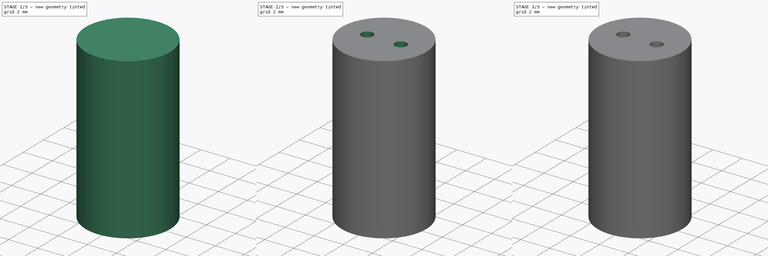
[diagram: build sequence overview — one tinted view per stage of 3, left to right]
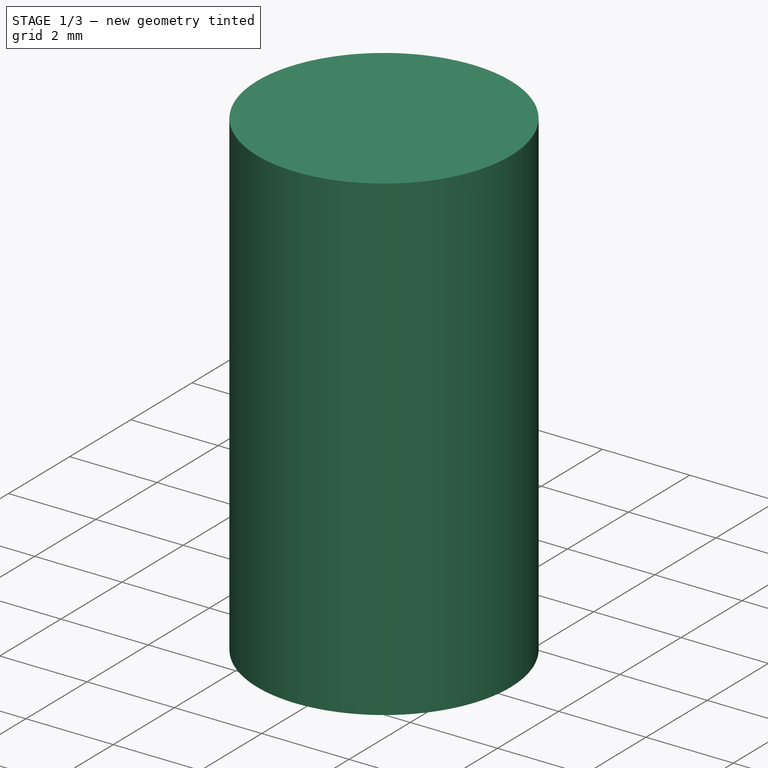
[diagram: stage 1 of 3 — iso view after this stage's code; geometry added in this stage tinted green]
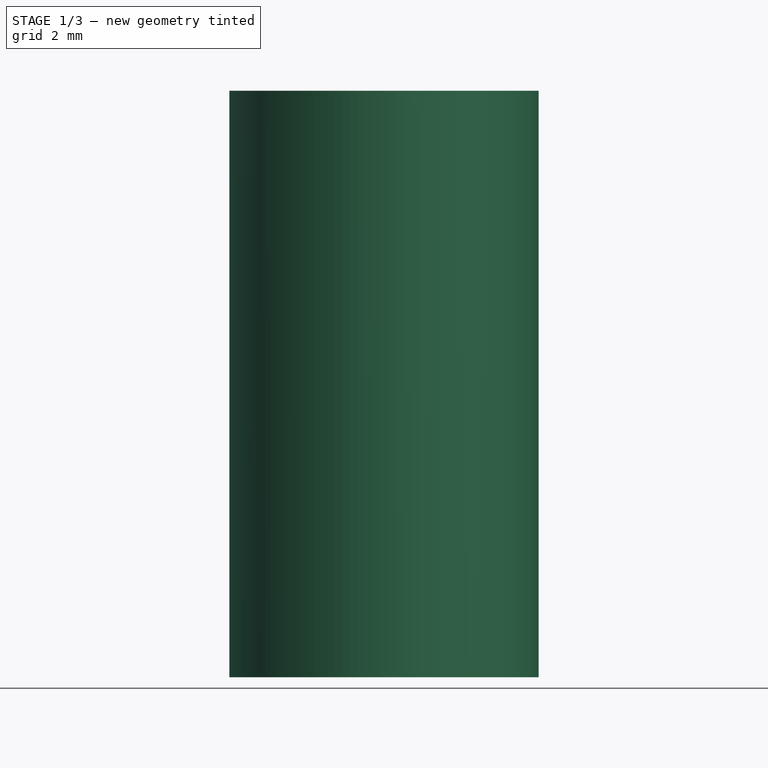
[diagram: stage 1 of 3 — front view after this stage's code; geometry added in this stage tinted green]
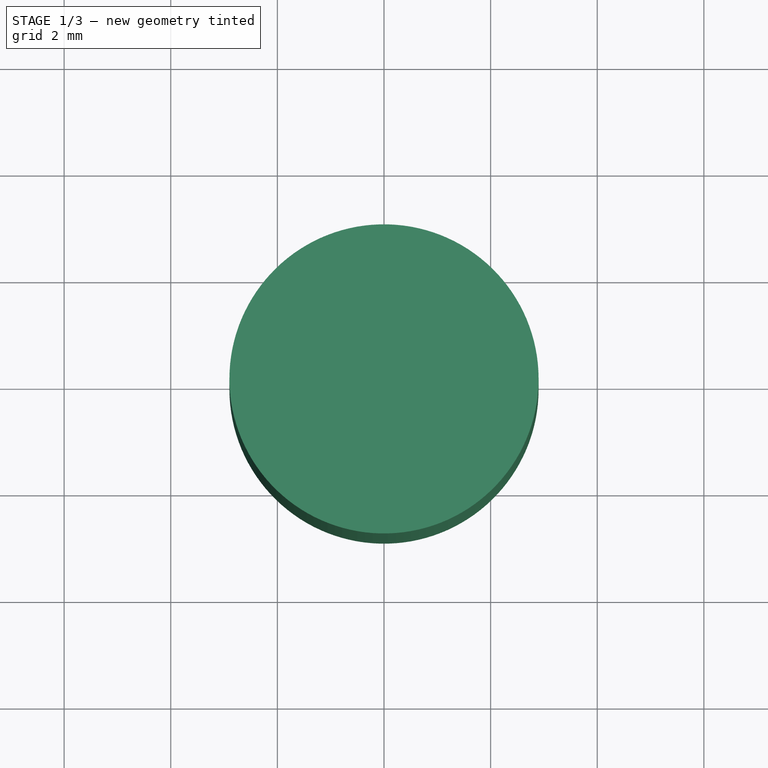
[diagram: stage 1 of 3 — top view after this stage's code; geometry added in this stage tinted green]
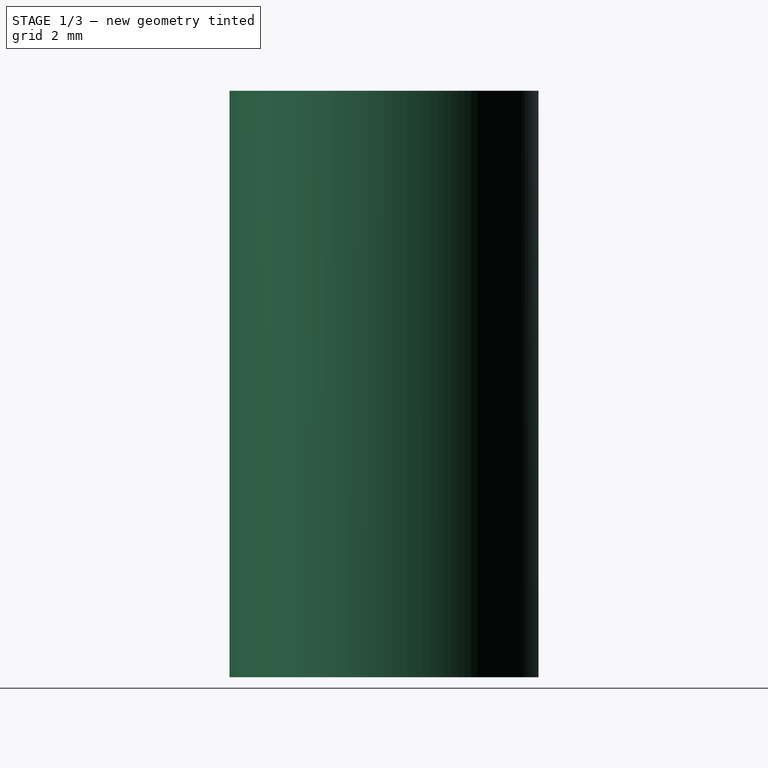
[diagram: stage 1 of 3 — right view after this stage's code; geometry added in this stage tinted green]
FCSTD DOCUMENT  (FreeCAD 0.21R33771 (Git))
Label: vactrol_housing_3mm
License: All rights reserved
LicenseURL: http://en.wikipedia.org/wiki/All_rights_reserved
objects: Sketcher::SketchObject×6, PartDesign::Pocket×4, PartDesign::Pad×2, PartDesign::Body×2, Spreadsheet::Sheet×1, PartDesign::Plane×1
note: 21 computed .brp shape members not serialized (recipe doc carries the construction recipe); baked Part::Feature solids carry a one-line shape summary decoded from their .brp

FEATURE [PartDesign::Body] Body  label="LDR_housing"
  Group = -> [Sketch,Pad,Sketch001,Pocket,Sketch002,Pocket001]
  Origin = -> Origin
  Tip = -> Pocket001
FEATURE [PartDesign::Plane] DatumPlane  label="LED_bottom_plane"
  AttachmentOffset = pos=(0,0,11) rot=(0,0,1;0rad)
  Length = 60
  MapMode = 5
  Placement = pos=(0,0,11) rot=(0,0,1;0rad)
  ResizeMode = 0
  Support = -> [XY_Plane001]
  Width = 60
  expr: .AttachmentOffset.Base.z = <<settings>>.LED_height
FEATURE [Sketcher::SketchObject] Sketch003
  FullyConstrained = true
  MapMode = 5
  Placement = pos=(0,0,11) rot=(0,0,1;0rad)
  Support = -> [DatumPlane]
  expr: Constraints[1] = <<settings>>.total_LED_diameter
  sketch-geometry (1):
    g0: Circle CenterX=0 CenterY=0 CenterZ=0 NormalX=0 NormalY=0 NormalZ=1 AngleXU=0 Radius=2.9
  constraints (2):
    c: Coincident(g0,g-1)
    c: Diameter(g0) = 5.8
FEATURE [PartDesign::Pad] Pad001  label="LED_main_body"
  Direction = (0,0,1)
  Length = 11
  Length2 = 10
  Placement = pos=(0,0,11) rot=(0,0,1;0rad)
  Profile = -> Sketch003
  ReferenceAxis = -> Sketch003 [N_Axis]
  Reversed = true
  Type = 0
  expr: Length = <<settings>>.LED_height
FEATURE [Sketcher::SketchObject] Sketch004
  FullyConstrained = true
  MapMode = 5
  Placement = pos=(0,0,0) rot=(1,0,0;3.14159rad)
  Support = -> [Pad001]
  expr: Constraints[1] = Spreadsheet.LED_flange_dia
  sketch-geometry (1):
    g0: Circle CenterX=0 CenterY=0 CenterZ=0 NormalX=0 NormalY=0 NormalZ=1 AngleXU=0 Radius=2.1
  constraints (2):
    c: Coincident(g0,g-1)
    c: Diameter(g0) = 4.2
FEATURE [PartDesign::Pocket] Pocket002  label="LED_cavity"
  BaseFeature = -> Pad001
  Direction = (0,0,1)
  Length = 9
  Length2 = 5
  Placement = pos=(0,0,11) rot=(0,0,1;0rad)
  Profile = -> Sketch004
  ReferenceAxis = -> Sketch004 [N_Axis]
  Type = 0
  expr: Length = <<settings>>.LED_content_height
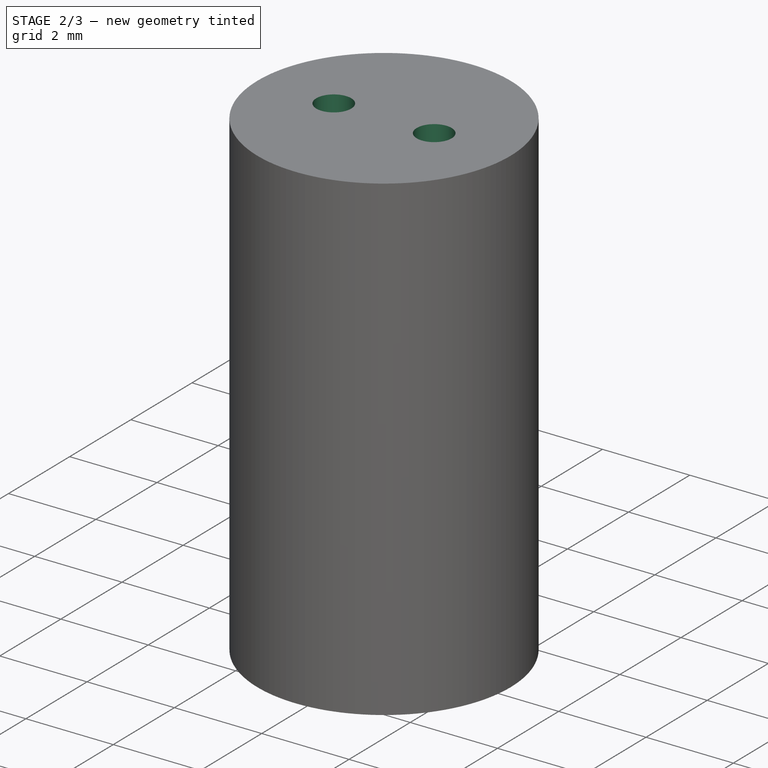
[diagram: stage 2 of 3 — iso view after this stage's code; geometry added in this stage tinted green]
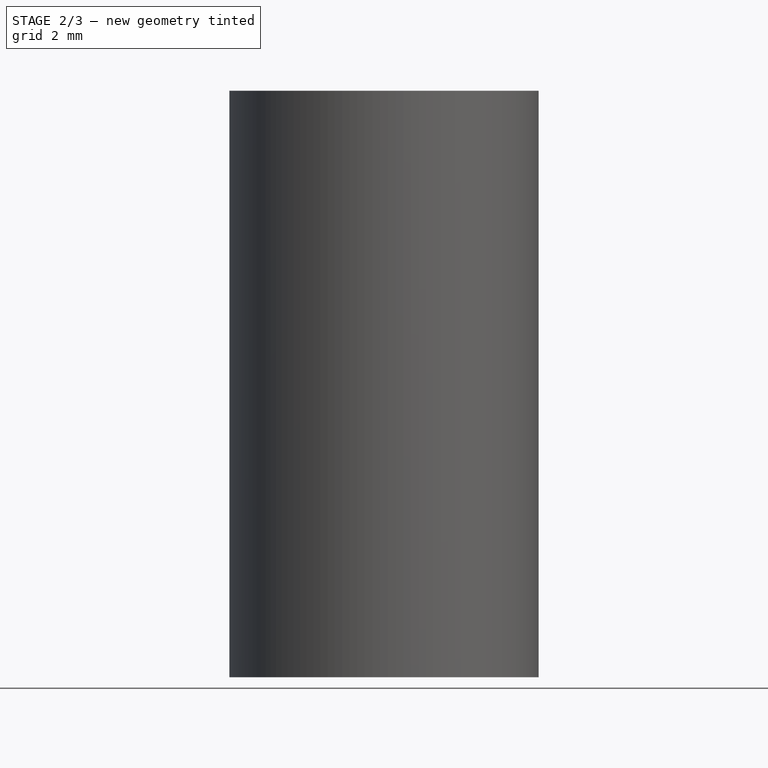
[diagram: stage 2 of 3 — front view after this stage's code; geometry added in this stage tinted green]
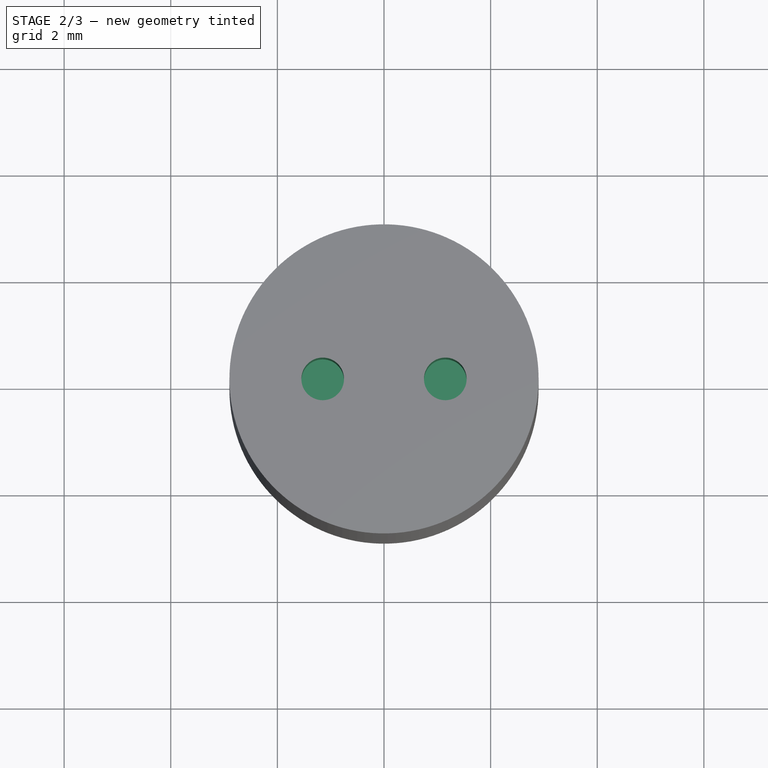
[diagram: stage 2 of 3 — top view after this stage's code; geometry added in this stage tinted green]
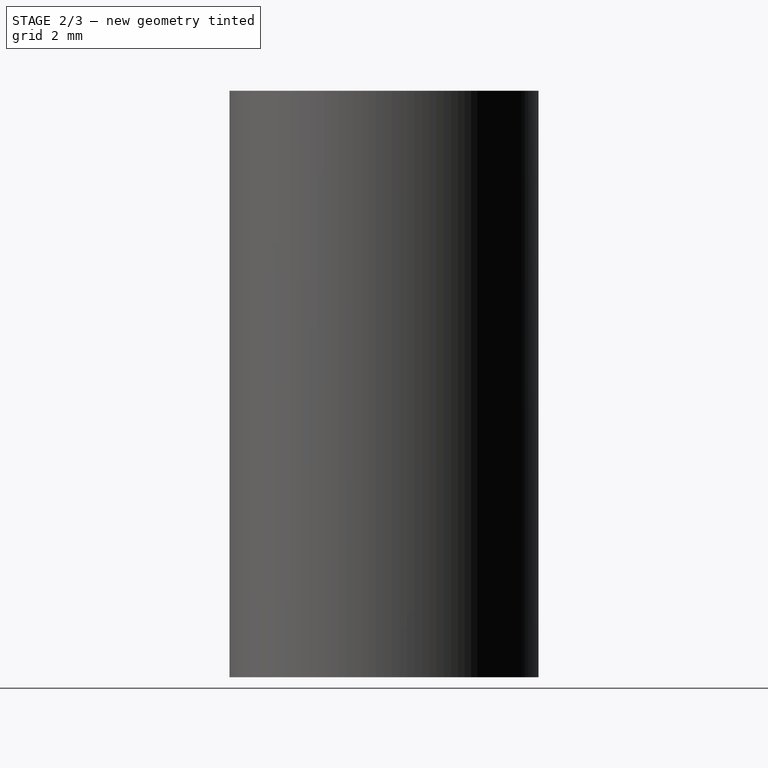
[diagram: stage 2 of 3 — right view after this stage's code; geometry added in this stage tinted green]
FEATURE [Sketcher::SketchObject] Sketch
  FullyConstrained = true
  MapMode = 5
  Support = -> [XY_Plane]
  expr: Constraints[1] = Spreadsheet.total_LDR_diameter
  sketch-geometry (1):
    g0: Circle CenterX=0 CenterY=0 CenterZ=0 NormalX=0 NormalY=0 NormalZ=1 AngleXU=0 Radius=2.05
  constraints (2):
    c: Coincident(g0,g-1)
    c: Diameter(g0) = 4.1
FEATURE [Spreadsheet::Sheet] Spreadsheet  label="settings"
  cells = A1='LED body diameter; B1(LED_dia)=3.3; C1='LED flange diameter; D1(LED_flange_dia)=4.2; A2='LDR lead spacing; B2(LDR_lead_spacing)=1.8; C2='LED lead spacing; D2(LED_lead_spacing)=2.3; A3='LDR lead thickness; B3(LDR_lead_thickness)=0.8; C3='LED lead thickness; D3(LED_lead_thickness)=0.8; A4='LDR housing wall thickness; B4(LDR_wall_thickness)=0.4; C4='LED housing wall thickness; D4(LED_wall_thickness)=0.8; A5='LDR content height; B5(LDR_content_height)=6; C5='LED content height; D5(LED_content_height)=9; A6='LDR bottom wall thickness; B6(LDR_bottom_wall_thickness)=1; C6='LED bottom wall thickness; D6(LED_bottom_wall_thickness)=2; A11='Calculations; A12='Total diameter; B12(total_LDR_diameter)==LED_dia + LDR_wall_thickness * 2; C12='Total diameter; D12(total_LED_diameter)==LED_flange_dia + LED_wall_thickness * 2; A13='LDR housing height; B13(LDR_height)==LDR_content_height + LDR_bottom_wall_thickness; C13='LED housing height; D13(LED_height)==LED_content_height + LED_bottom_wall_thickness; C14='LED plane position; D14==LED_height
FEATURE [PartDesign::Pad] Pad  label="LDR main body"
  Direction = (0,0,1)
  Length = 7
  Length2 = 10
  Profile = -> Sketch
  ReferenceAxis = -> Sketch [N_Axis]
  Type = 0
  expr: Length = <<settings>>.LDR_height
FEATURE [Sketcher::SketchObject] Sketch005
  FullyConstrained = true
  MapMode = 5
  Placement = pos=(0,0,11) rot=(0,0,1;0rad)
  Support = -> [Pocket002]
  expr: Constraints[2] = <<settings>>.LED_lead_spacing
  expr: Constraints[5] = <<settings>>.LED_lead_thickness
  sketch-geometry (3):
    g0: LineSegment StartX=-1.15 StartY=0 StartZ=0 EndX=1.15 EndY=0 EndZ=0
    g1: Circle CenterX=-1.15 CenterY=0 CenterZ=0 NormalX=0 NormalY=0 NormalZ=1 AngleXU=0 Radius=0.4
    g2: Circle CenterX=1.15 CenterY=0 CenterZ=0 NormalX=0 NormalY=0 NormalZ=1 AngleXU=0 Radius=0.4
  constraints (7):
    c: Symmetric(g0,g0,g-1)
    c: Horizontal(g0)
    c: Distance(g0) = 2.3
    c: Coincident(g2,g0)
    c: Equal(g2,g1)
    c: Diameter(g1) = 0.8
    c: Coincident(g1,g0)
FEATURE [PartDesign::Pocket] Pocket003  label="led_leads"
  BaseFeature = -> Pocket002
  Direction = (0,0,-1)
  Length = 5
  Length2 = 5
  Placement = pos=(0,0,11) rot=(0,0,1;0rad)
  Profile = -> Sketch005
  ReferenceAxis = -> Sketch005 [N_Axis]
  Type = 1
FEATURE [PartDesign::Body] Body001  label="LED_housing"
  Group = -> [DatumPlane,Sketch003,Pad001,Sketch004,Pocket002,Sketch005,Pocket003]
  Origin = -> Origin001
  Tip = -> Pocket003
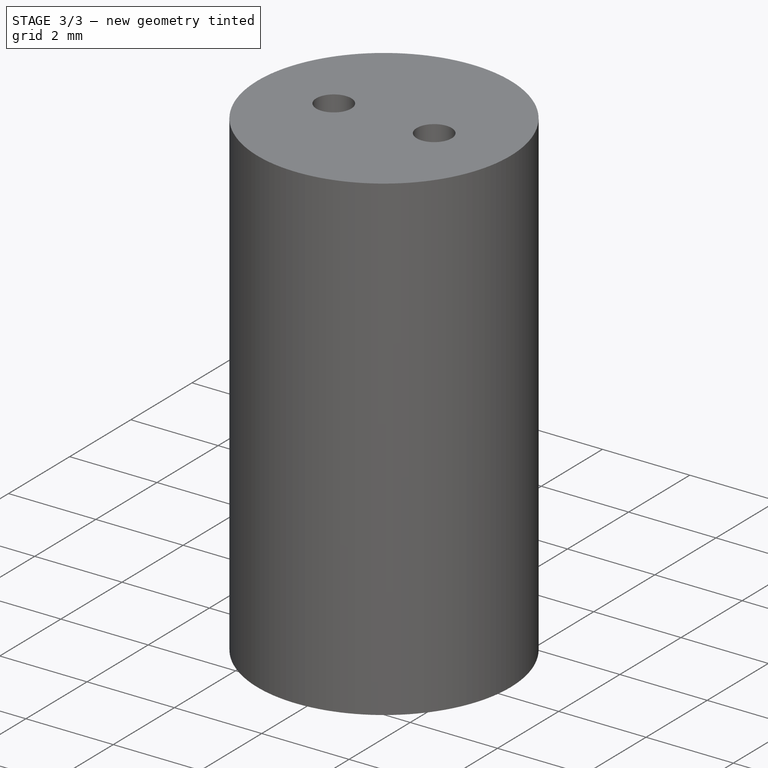
[diagram: stage 3 of 3 — iso view after this stage's code; geometry added in this stage tinted green]
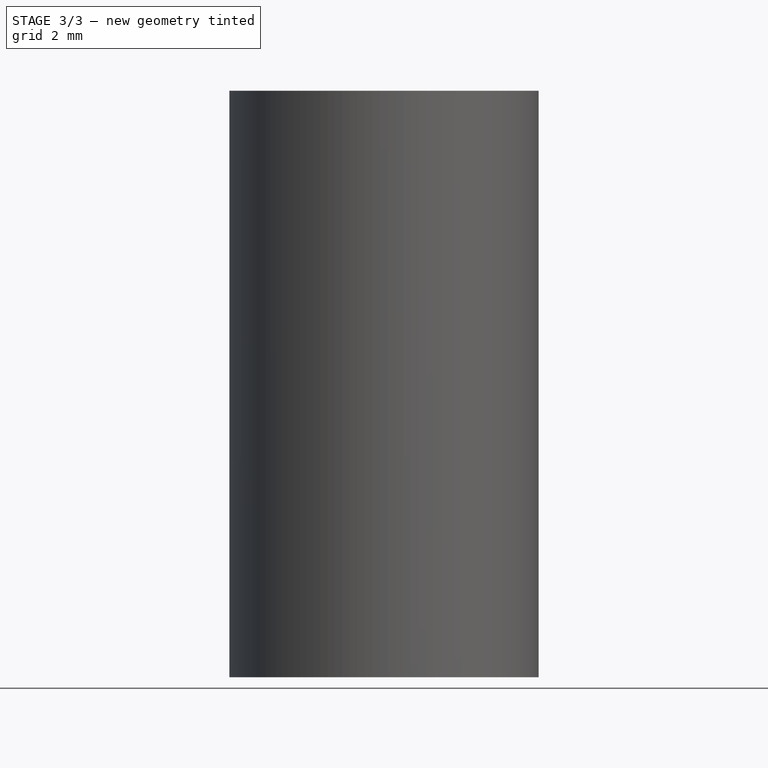
[diagram: stage 3 of 3 — front view after this stage's code; geometry added in this stage tinted green]
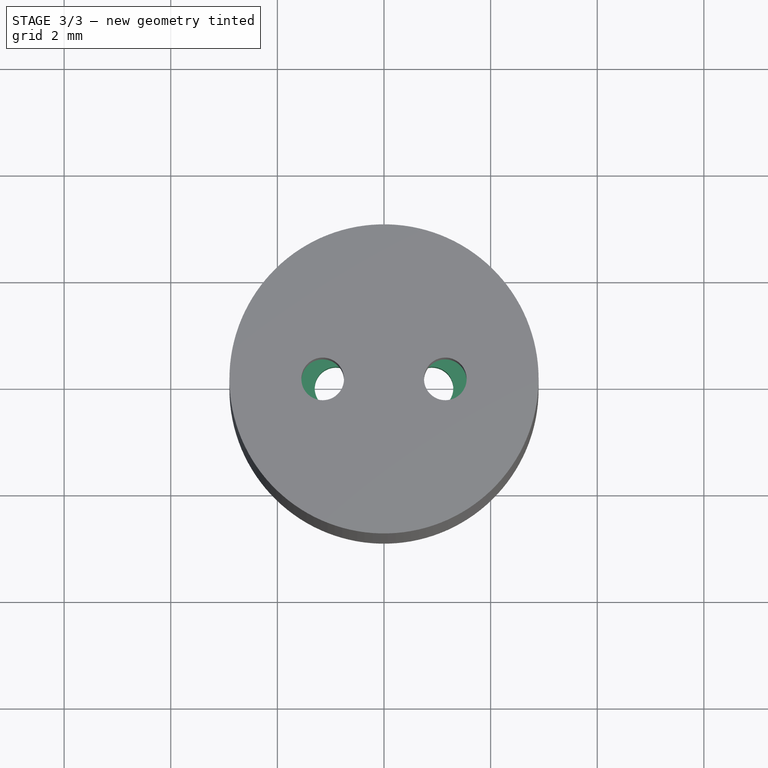
[diagram: stage 3 of 3 — top view after this stage's code; geometry added in this stage tinted green]
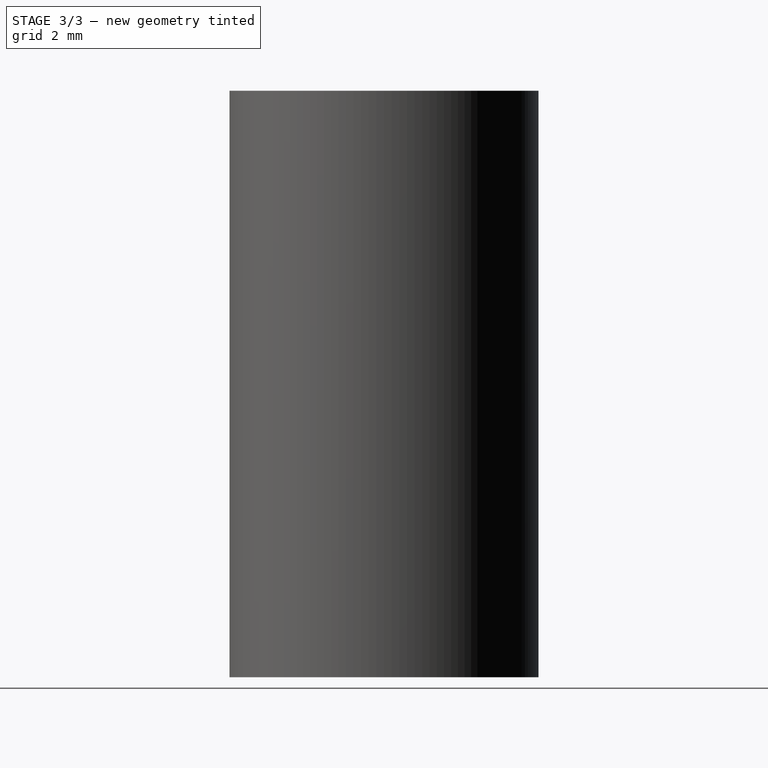
[diagram: stage 3 of 3 — right view after this stage's code; geometry added in this stage tinted green]
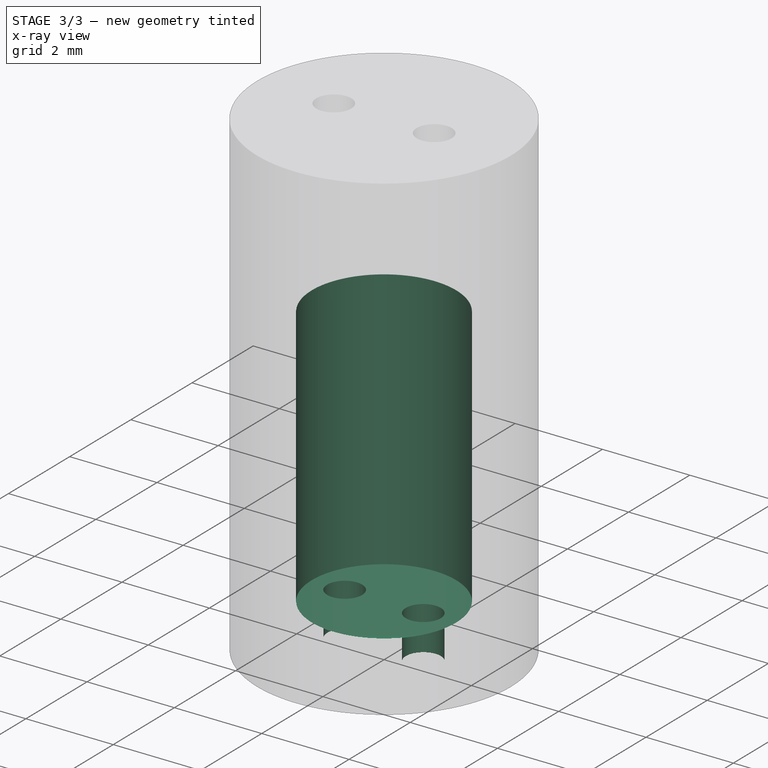
[diagram: stage 3 of 3 — x-ray composite at the iso view; earlier geometry ghosted, this stage's added geometry solid]
FEATURE [Sketcher::SketchObject] Sketch001
  FullyConstrained = true
  MapMode = 5
  Placement = pos=(0,0,7) rot=(0,0,1;0rad)
  Support = -> [Pad]
  expr: Constraints[1] = Spreadsheet.LED_dia
  sketch-geometry (1):
    g0: Circle CenterX=0 CenterY=0 CenterZ=0 NormalX=0 NormalY=0 NormalZ=1 AngleXU=0 Radius=1.65
  constraints (2):
    c: Coincident(g0,g-1)
    c: Diameter(g0) = 3.3
FEATURE [PartDesign::Pocket] Pocket  label="LDR_cavity"
  BaseFeature = -> Pad
  Direction = (0,0,-1)
  Length = 6
  Length2 = 5
  Profile = -> Sketch001
  ReferenceAxis = -> Sketch001 [N_Axis]
  Type = 0
  expr: Length = <<settings>>.LDR_content_height
FEATURE [Sketcher::SketchObject] Sketch002
  FullyConstrained = true
  MapMode = 5
  Placement = pos=(0,0,1) rot=(0,0,1;0rad)
  Support = -> [Pocket]
  expr: Constraints[2] = <<settings>>.LDR_lead_spacing
  expr: Constraints[6] = <<settings>>.LDR_lead_thickness
  sketch-geometry (3):
    g0: LineSegment StartX=-0.9 StartY=0 StartZ=0 EndX=0.9 EndY=0 EndZ=0
    g1: Circle CenterX=-0.9 CenterY=0 CenterZ=0 NormalX=0 NormalY=0 NormalZ=1 AngleXU=0 Radius=0.4
    g2: Circle CenterX=0.9 CenterY=0 CenterZ=0 NormalX=0 NormalY=0 NormalZ=1 AngleXU=0 Radius=0.4
  constraints (7):
    c: Symmetric(g0,g0,g-1)
    c: Horizontal(g0)
    c: Distance(g0) = 1.8
    c: Coincident(g1,g0)
    c: Coincident(g2,g0)
    c: Equal(g1,g2)
    c: Diameter(g1) = 0.8
FEATURE [PartDesign::Pocket] Pocket001  label="LDR_leads"
  BaseFeature = -> Pocket
  Direction = (0,0,-1)
  Length = 5
  Length2 = 5
  Profile = -> Sketch002
  ReferenceAxis = -> Sketch002 [N_Axis]
  Type = 1
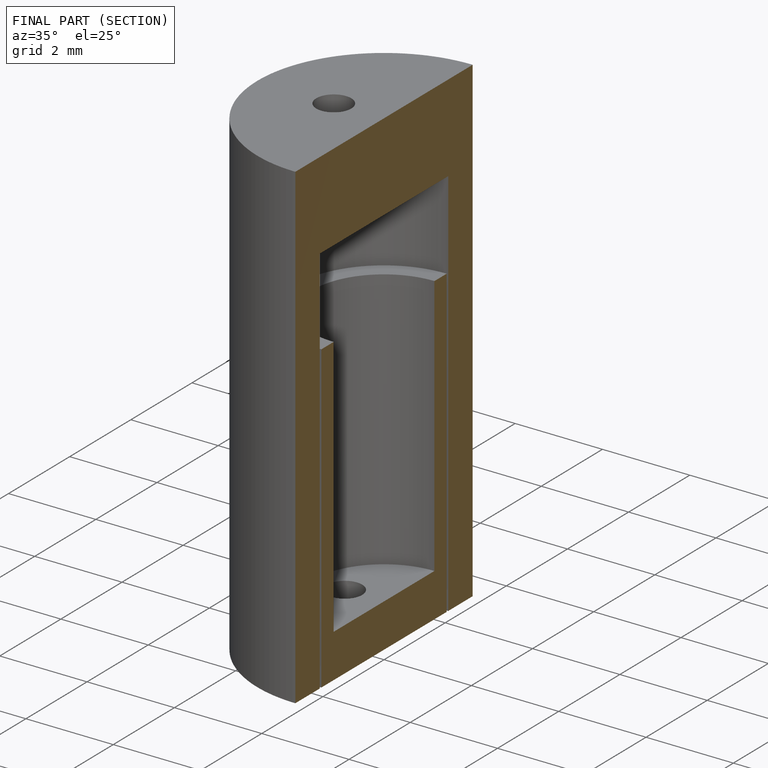
[diagram: finished part — half-section view (interior)]
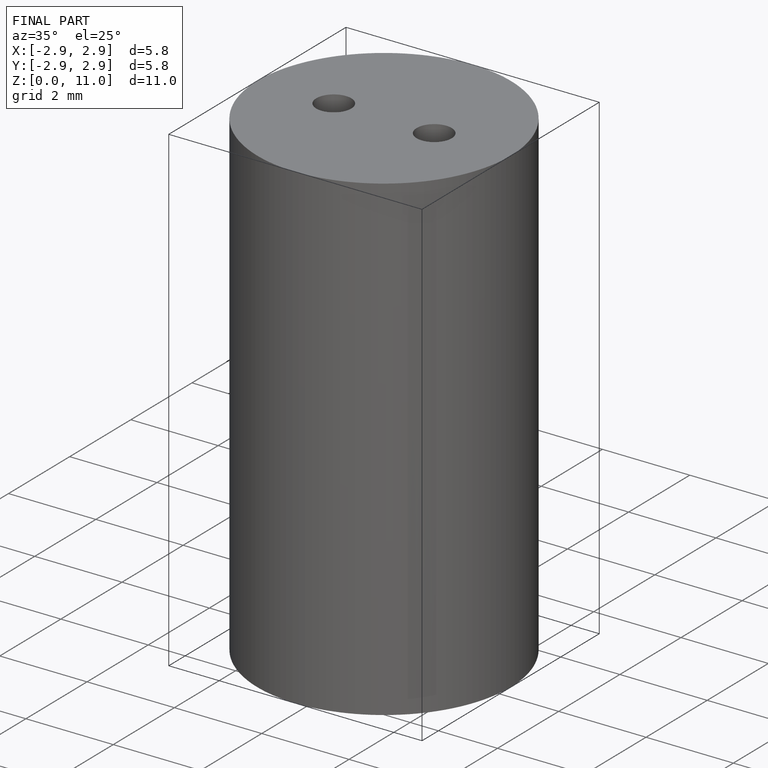
[diagram: finished part — iso view with bounding-box wireframe]
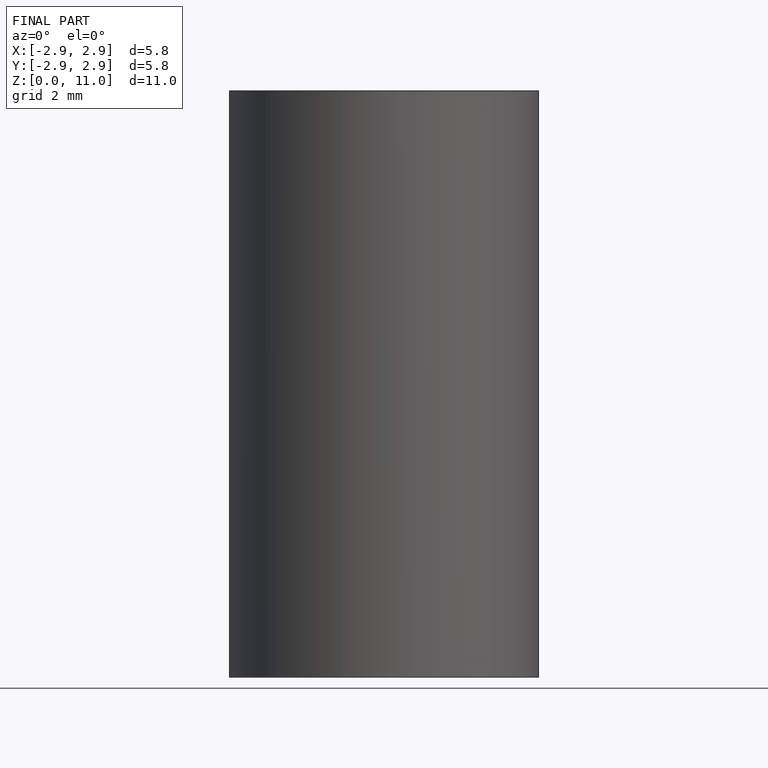
[diagram: finished part — front view with bounding-box wireframe]
